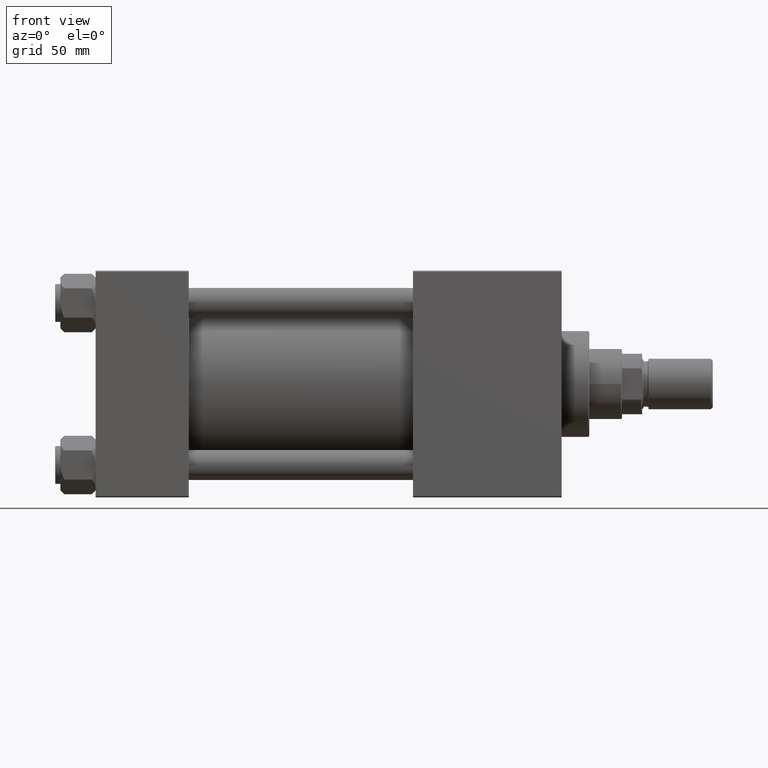
[diagram: clean part render]
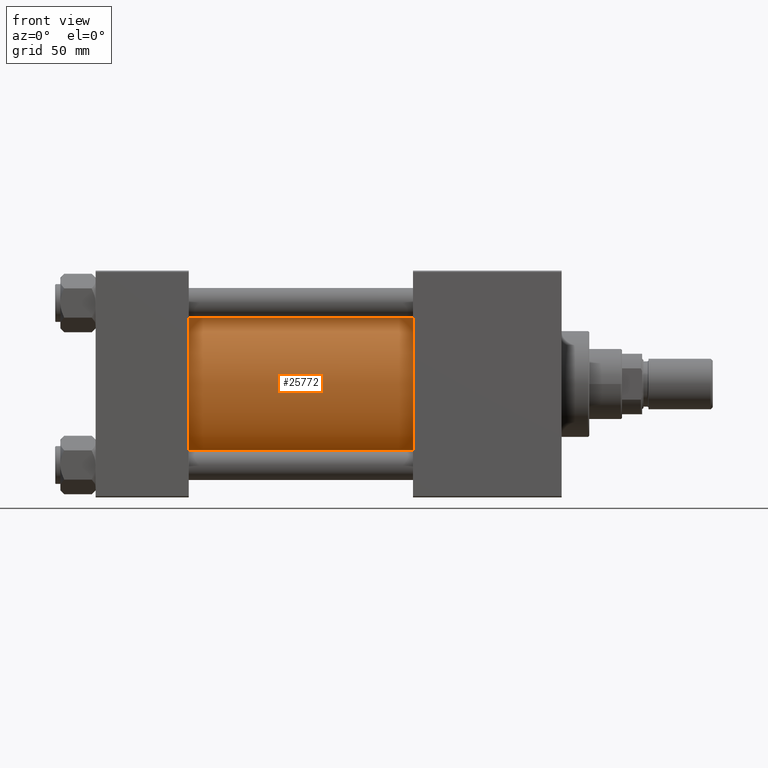
[diagram: same view with one face highlighted and labeled with its STEP entity id]
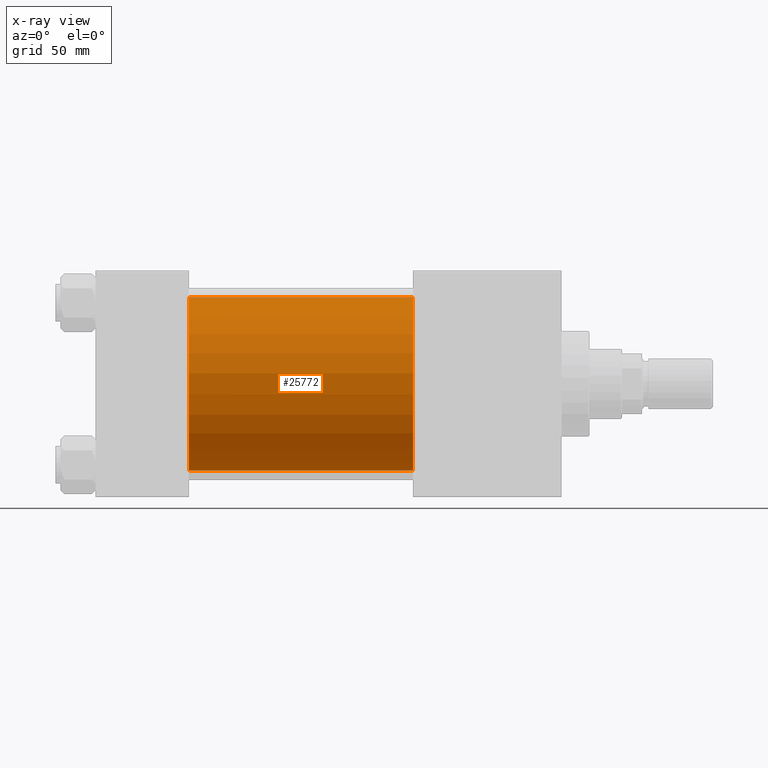
[diagram: x-ray of the same camera — body ghosted, the highlighted face saturated]
A machine part, front view. The second image highlights one B-rep face of the part: STEP entity #25772.
The next image is the same camera in x-ray: the body ghosted, the highlighted face saturated — about 2% of this face is hidden behind the body in this view.
In plain terms, the highlighted cylindrical surface (partial cylindrical patch) has radius 34.5 mm, axis along (-1, -0, -0).
Its self-contained STEP definition (entity closure, byte-faithful):
#539 = CARTESIAN_POINT ( 'NONE',  ( 126.0000000000000000, -2.602085213965210642E-15, 0.000000000000000000 ) ) ;
#1902 = CARTESIAN_POINT ( 'NONE',  ( 37.00000000000000711, -2.602085213965210642E-15, 34.50000000000000000 ) ) ;
#2088 = DIRECTION ( 'NONE',  ( -1.000000000000000000, -0.000000000000000000, -0.000000000000000000 ) ) ;
#5520 = CARTESIAN_POINT ( 'NONE',  ( 126.0000000000000000, -2.602085213965210642E-15, 34.50000000000000000 ) ) ;
#5749 = ORIENTED_EDGE ( 'NONE', *, *, #36315, .T. ) ;
#7731 = DIRECTION ( 'NONE',  ( 0.000000000000000000, 0.000000000000000000, -1.000000000000000000 ) ) ;
#10766 = VECTOR ( 'NONE', #48824, 1000.000000000000000 ) ;
#11849 = AXIS2_PLACEMENT_3D ( 'NONE', #46161, #49763, #22751 ) ;
#15644 = ORIENTED_EDGE ( 'NONE', *, *, #28766, .F. ) ;
#15782 = VERTEX_POINT ( 'NONE', #18672 ) ;
#16396 = EDGE_CURVE ( 'NONE', #39424, #26658, #34846, .T. ) ;
#17157 = EDGE_CURVE ( 'NONE', #15782, #26658, #30340, .T. ) ;
#18672 = CARTESIAN_POINT ( 'NONE',  ( 126.0000000000000000, 1.622946243093158675E-15, -34.50000000000000000 ) ) ;
#22067 = AXIS2_PLACEMENT_3D ( 'NONE', #45275, #2088, #41664 ) ;
#22751 = DIRECTION ( 'NONE',  ( 0.000000000000000000, 0.000000000000000000, 1.000000000000000000 ) ) ;
#25772 = ADVANCED_FACE ( 'NONE', ( #44521 ), #32680, .T. ) ;
#26658 = VERTEX_POINT ( 'NONE', #27518 ) ;
#26690 = VECTOR ( 'NONE', #49138, 1000.000000000000000 ) ;
#27518 = CARTESIAN_POINT ( 'NONE',  ( 37.00000000000000711, 1.622946243093158675E-15, -34.50000000000000000 ) ) ;
#27864 = EDGE_LOOP ( 'NONE', ( #29264, #15644, #5749, #40360 ) ) ;
#28766 = EDGE_CURVE ( 'NONE', #42973, #15782, #38455, .T. ) ;
#29264 = ORIENTED_EDGE ( 'NONE', *, *, #17157, .F. ) ;
#30340 = LINE ( 'NONE', #41673, #26690 ) ;
#32680 = CYLINDRICAL_SURFACE ( 'NONE', #22067, 34.50000000000000000 ) ;
#33139 = LINE ( 'NONE', #33886, #10766 ) ;
#33886 = CARTESIAN_POINT ( 'NONE',  ( 126.0000000000000000, -2.602085213965210642E-15, 34.50000000000000000 ) ) ;
#34846 = CIRCLE ( 'NONE', #11849, 34.50000000000000000 ) ;
#36315 = EDGE_CURVE ( 'NONE', #42973, #39424, #33139, .T. ) ;
#38455 = CIRCLE ( 'NONE', #49155, 34.50000000000000000 ) ;
#39424 = VERTEX_POINT ( 'NONE', #1902 ) ;
#40360 = ORIENTED_EDGE ( 'NONE', *, *, #16396, .T. ) ;
#41664 = DIRECTION ( 'NONE',  ( 0.000000000000000000, 0.000000000000000000, 1.000000000000000000 ) ) ;
#41673 = CARTESIAN_POINT ( 'NONE',  ( 126.0000000000000000, 1.622946243093158675E-15, -34.50000000000000000 ) ) ;
#42973 = VERTEX_POINT ( 'NONE', #5520 ) ;
#44521 = FACE_OUTER_BOUND ( 'NONE', #27864, .T. ) ;
#45275 = CARTESIAN_POINT ( 'NONE',  ( 126.0000000000000000, -2.602085213965210642E-15, 0.000000000000000000 ) ) ;
#46161 = CARTESIAN_POINT ( 'NONE',  ( 37.00000000000000711, -2.602085213965210642E-15, 0.000000000000000000 ) ) ;
#48824 = DIRECTION ( 'NONE',  ( -1.000000000000000000, -0.000000000000000000, -0.000000000000000000 ) ) ;
#49138 = DIRECTION ( 'NONE',  ( -1.000000000000000000, -0.000000000000000000, -0.000000000000000000 ) ) ;
#49155 = AXIS2_PLACEMENT_3D ( 'NONE', #539, #50679, #7731 ) ;
#49763 = DIRECTION ( 'NONE',  ( 1.000000000000000000, -0.000000000000000000, 0.000000000000000000 ) ) ;
#50679 = DIRECTION ( 'NONE',  ( 1.000000000000000000, 0.000000000000000000, 0.000000000000000000 ) ) ;